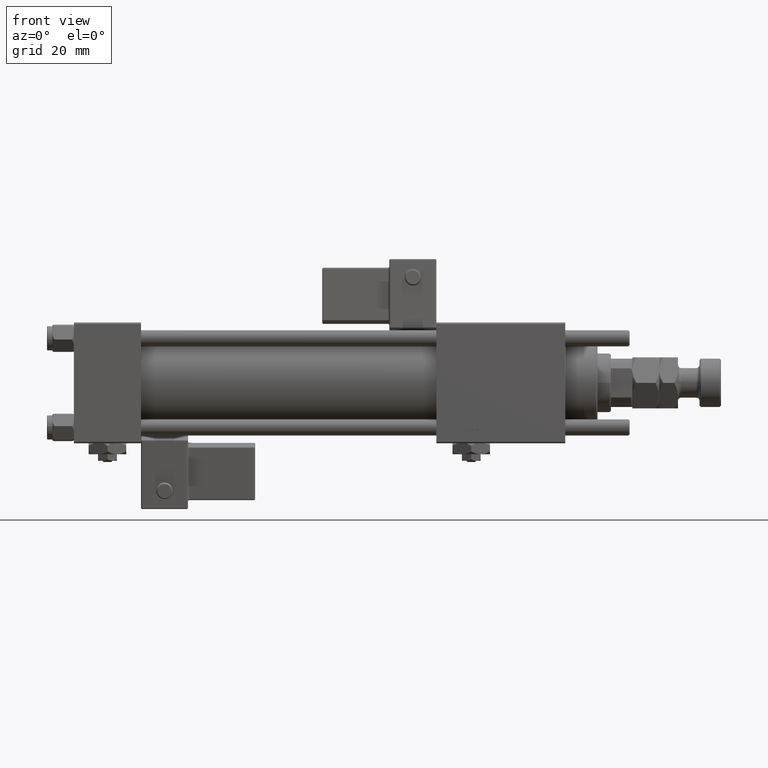
[diagram: clean part render]
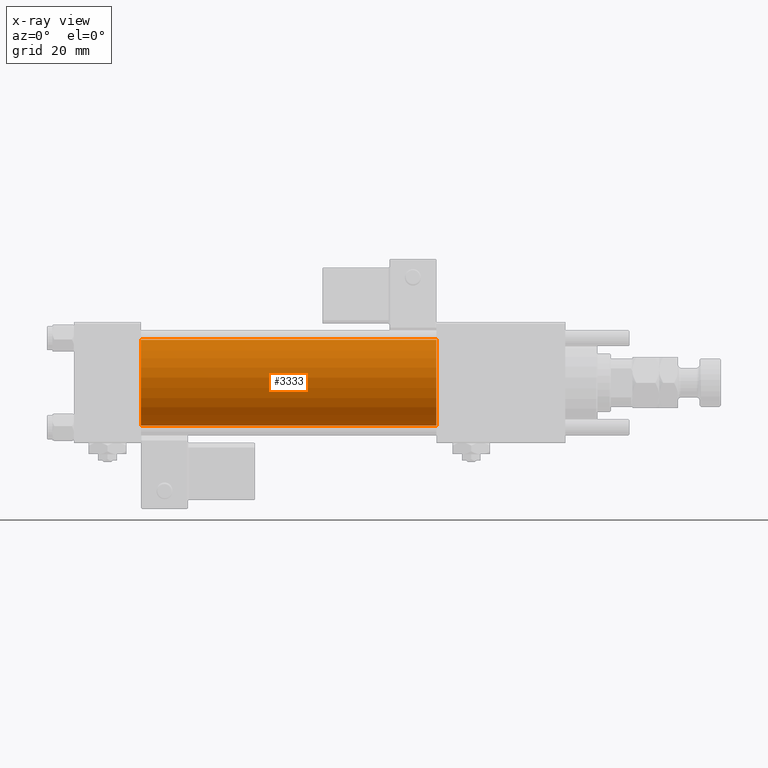
[diagram: x-ray — body ghosted, one internal face saturated and labeled with its STEP entity id]
A machine part, front view, then the same camera in x-ray: the body is ghosted and one INTERNAL B-rep face — a face not visible from any outside direction — is saturated and labeled: STEP entity #3333.
In plain terms, the highlighted cylindrical surface (partial cylindrical patch) has radius 16 mm, axis along (-1, -0, -0).
Its self-contained STEP definition (entity closure, byte-faithful):
#2053 = VERTEX_POINT ( 'NONE', #61639 ) ;
#3119 = FACE_OUTER_BOUND ( 'NONE', #54756, .T. ) ;
#3223 = CARTESIAN_POINT ( 'NONE',  ( 135.0000000000000000, -2.602085213965210642E-15, 16.00000000000000000 ) ) ;
#3333 = ADVANCED_FACE ( 'NONE', ( #3119 ), #42439, .F. ) ;
#3685 = LINE ( 'NONE', #23026, #59916 ) ;
#3745 = DIRECTION ( 'NONE',  ( -1.000000000000000000, -0.000000000000000000, -0.000000000000000000 ) ) ;
#4966 = VERTEX_POINT ( 'NONE', #3223 ) ;
#7222 = EDGE_CURVE ( 'NONE', #58462, #2053, #60218, .T. ) ;
#9592 = AXIS2_PLACEMENT_3D ( 'NONE', #52228, #36676, #23306 ) ;
#9910 = EDGE_CURVE ( 'NONE', #4966, #20022, #36949, .T. ) ;
#10932 = CARTESIAN_POINT ( 'NONE',  ( 25.00000000000000000, -2.602085213965210642E-15, 0.000000000000000000 ) ) ;
#11882 = CARTESIAN_POINT ( 'NONE',  ( 135.0000000000000000, -6.426503353294456087E-16, -16.00000000000000000 ) ) ;
#13423 = AXIS2_PLACEMENT_3D ( 'NONE', #57680, #3745, #56444 ) ;
#15720 = LINE ( 'NONE', #11882, #16643 ) ;
#16643 = VECTOR ( 'NONE', #35075, 1000.000000000000000 ) ;
#20022 = VERTEX_POINT ( 'NONE', #46109 ) ;
#23026 = CARTESIAN_POINT ( 'NONE',  ( 135.0000000000000000, -2.602085213965210642E-15, 16.00000000000000000 ) ) ;
#23306 = DIRECTION ( 'NONE',  ( 0.000000000000000000, 0.000000000000000000, -1.000000000000000000 ) ) ;
#30280 = DIRECTION ( 'NONE',  ( 1.000000000000000000, 0.000000000000000000, 0.000000000000000000 ) ) ;
#32348 = ORIENTED_EDGE ( 'NONE', *, *, #9910, .T. ) ;
#35075 = DIRECTION ( 'NONE',  ( -1.000000000000000000, -0.000000000000000000, -0.000000000000000000 ) ) ;
#36676 = DIRECTION ( 'NONE',  ( 1.000000000000000000, 0.000000000000000000, 0.000000000000000000 ) ) ;
#36949 = CIRCLE ( 'NONE', #9592, 16.00000000000000000 ) ;
#41214 = EDGE_CURVE ( 'NONE', #20022, #2053, #15720, .T. ) ;
#41548 = ORIENTED_EDGE ( 'NONE', *, *, #41214, .T. ) ;
#41929 = AXIS2_PLACEMENT_3D ( 'NONE', #10932, #30280, #49654 ) ;
#42439 = CYLINDRICAL_SURFACE ( 'NONE', #13423, 16.00000000000000000 ) ;
#46109 = CARTESIAN_POINT ( 'NONE',  ( 135.0000000000000000, -6.426503353294456087E-16, -16.00000000000000000 ) ) ;
#47476 = DIRECTION ( 'NONE',  ( -1.000000000000000000, -0.000000000000000000, -0.000000000000000000 ) ) ;
#49654 = DIRECTION ( 'NONE',  ( 0.000000000000000000, 0.000000000000000000, -1.000000000000000000 ) ) ;
#51492 = CARTESIAN_POINT ( 'NONE',  ( 25.00000000000000000, -2.602085213965210642E-15, 16.00000000000000000 ) ) ;
#52228 = CARTESIAN_POINT ( 'NONE',  ( 135.0000000000000000, -2.602085213965210642E-15, 0.000000000000000000 ) ) ;
#54756 = EDGE_LOOP ( 'NONE', ( #32348, #41548, #60743, #55810 ) ) ;
#55810 = ORIENTED_EDGE ( 'NONE', *, *, #57081, .F. ) ;
#56444 = DIRECTION ( 'NONE',  ( 0.000000000000000000, 0.000000000000000000, 1.000000000000000000 ) ) ;
#57081 = EDGE_CURVE ( 'NONE', #4966, #58462, #3685, .T. ) ;
#57680 = CARTESIAN_POINT ( 'NONE',  ( 135.0000000000000000, -2.602085213965210642E-15, 0.000000000000000000 ) ) ;
#58462 = VERTEX_POINT ( 'NONE', #51492 ) ;
#59916 = VECTOR ( 'NONE', #47476, 1000.000000000000000 ) ;
#60218 = CIRCLE ( 'NONE', #41929, 16.00000000000000000 ) ;
#60743 = ORIENTED_EDGE ( 'NONE', *, *, #7222, .F. ) ;
#61639 = CARTESIAN_POINT ( 'NONE',  ( 25.00000000000000000, -6.426503353294456087E-16, -16.00000000000000000 ) ) ;